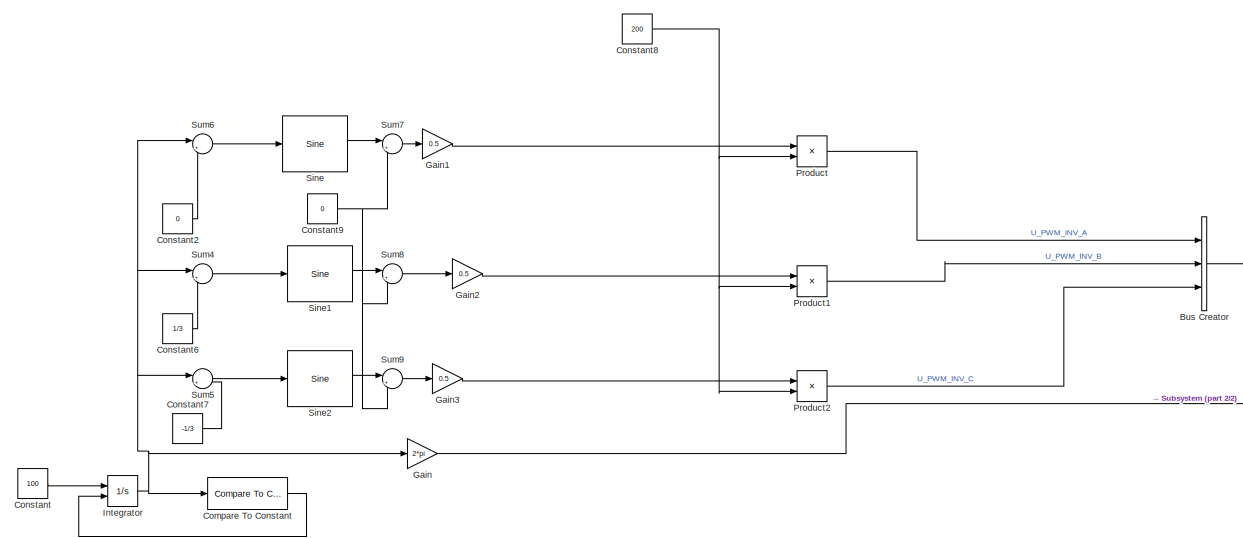
[diagram: root canvas - part 1/2, middle left region]
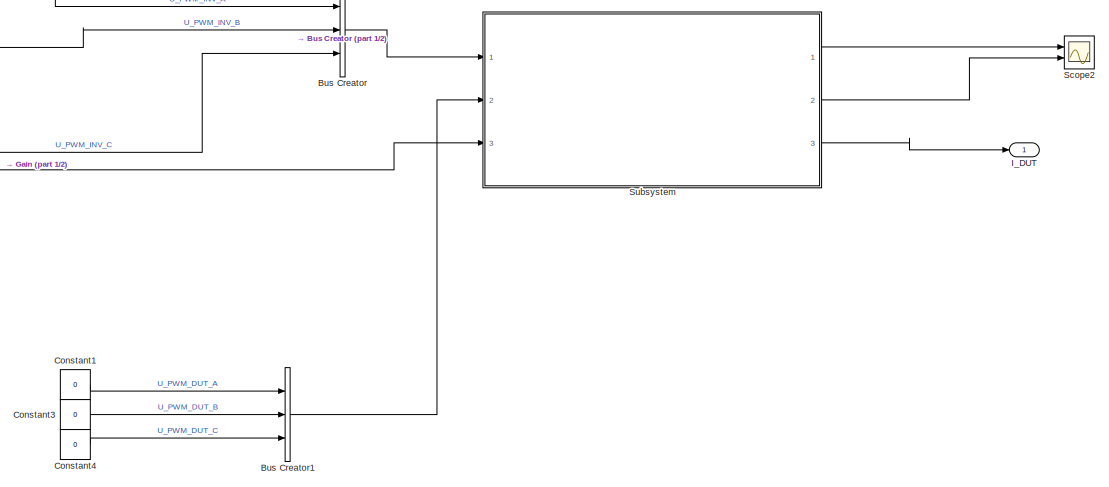
[diagram: root canvas - part 2/2, middle right region]
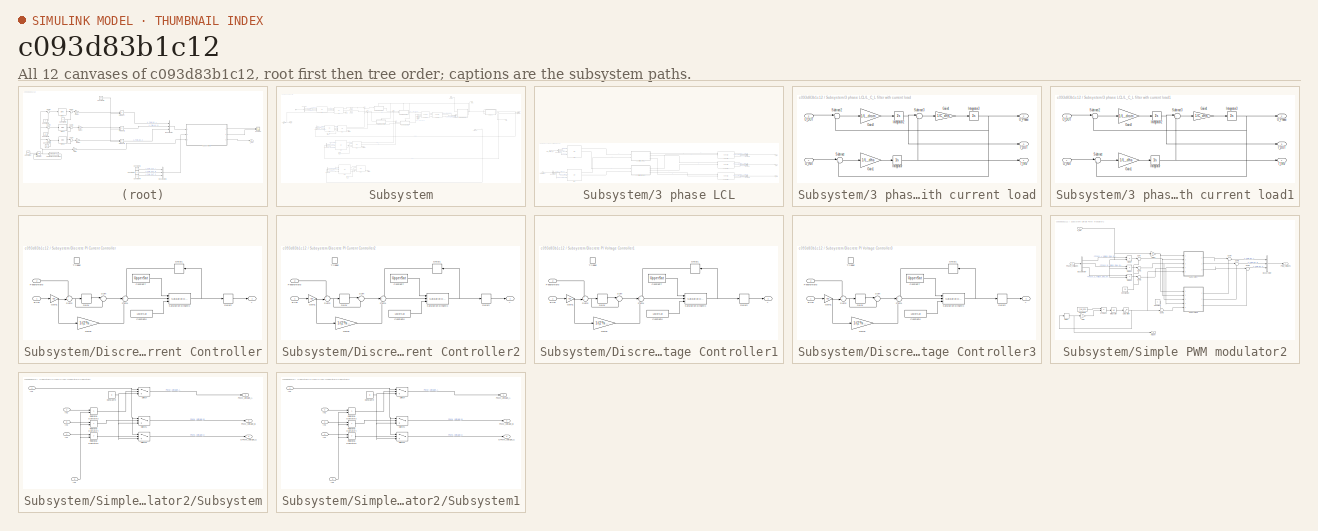
[diagram: thumbnail index - all 12 canvases of the model, root first then tree order]
MODEL slx_c093d83b1c12
KIND model
CONFIG AbsTol = auto
CONFIG EnableMultiTasking = off
CONFIG FixedStep = auto
CONFIG MaxStep = auto
CONFIG MinStep = auto
CONFIG RelTol = 1e-3
CONFIG SampleTimeConstraint = Unconstrained
CONFIG Solver = VariableStepAuto
CONFIG SolverName = VariableStepAuto
CONFIG StartTime = 0.0
CONFIG StopTime = 0.05
BLOCK [BusCreator] Bus Creator
  DisplayOption = bar
  InheritFromInputs = on
  Inputs = 3
  Ports = [3, 1]
BLOCK [BusCreator] Bus Creator1
  DisplayOption = bar
  InheritFromInputs = on
  Inputs = 3
  Ports = [3, 1]
BLOCK [Reference] Compare To Constant  REF=simulink/Logic and Bit
Operations/Compare
To Constant
  Ports = [1, 1]
  SourceBlock = simulink/Logic and Bit\nOperations/Compare\nTo Constant
  SourceProductBaseCode = SL
  SourceProductName = Simulink
  SourceType = Compare To Constant
BLOCK [Constant] Constant
  Value = 100
BLOCK [Constant] Constant1
  Value = 0
BLOCK [Constant] Constant2
  Value = 0
BLOCK [Constant] Constant3
  Value = 0
BLOCK [Constant] Constant4
  Value = 0
BLOCK [Constant] Constant6
  Value = 1/3
BLOCK [Constant] Constant7
  Value = -1/3
BLOCK [Constant] Constant8
  Value = 200
BLOCK [Constant] Constant9
  Value = 0
BLOCK [Gain] Gain
  Gain = 2*pi
  OutDataTypeStr = Inherit: Inherit via internal rule
  ParamDataTypeStr = Inherit: Inherit via internal rule
  SaturateOnIntegerOverflow = off
BLOCK [Gain] Gain1
  Gain = 0.5
  OutDataTypeStr = Inherit: Inherit via internal rule
  ParamDataTypeStr = Inherit: Inherit via internal rule
  SaturateOnIntegerOverflow = off
BLOCK [Gain] Gain2
  Gain = 0.5
  OutDataTypeStr = Inherit: Inherit via internal rule
  ParamDataTypeStr = Inherit: Inherit via internal rule
  SaturateOnIntegerOverflow = off
BLOCK [Gain] Gain3
  Gain = 0.5
  OutDataTypeStr = Inherit: Inherit via internal rule
  ParamDataTypeStr = Inherit: Inherit via internal rule
  SaturateOnIntegerOverflow = off
BLOCK [Outport] I_DUT
  IconDisplay = Port number
BLOCK [Integrator] Integrator
  ExternalReset = either
  Ports = [2, 1]
BLOCK [Product] Product
  InputSameDT = off
  OutDataTypeStr = Inherit: Inherit via internal rule
  Ports = [2, 1]
  RndMeth = Floor
  SaturateOnIntegerOverflow = off
BLOCK [Product] Product1
  InputSameDT = off
  OutDataTypeStr = Inherit: Inherit via internal rule
  Ports = [2, 1]
  RndMeth = Floor
  SaturateOnIntegerOverflow = off
BLOCK [Product] Product2
  InputSameDT = off
  OutDataTypeStr = Inherit: Inherit via internal rule
  Ports = [2, 1]
  RndMeth = Floor
  SaturateOnIntegerOverflow = off
BLOCK [Scope] Scope2
  Floating = off
  NumInputPorts = 2
  Ports = [2]
  ScopeSpecificationString = Simulink.scopes.TimeScopeBlockCfg('CurrentConfiguration', extmgr.ConfigurationSet(extmgr.Configuration('Core','General UI',true),extmgr.Configuration('Core','Source UI',true),extmgr.Configuration('Sources','WiredSimulink',true),extmgr.Configuration('Visuals','Time Domain',true,'SerializedDisplays',{struct('MinYLimReal','-130.78931','MaxYLimReal','139.79787','YLabelReal','','MinYLimMag',' 0.00000',...<+2735ch>
BLOCK [Reference] Sine  REF=simulink/Lookup
Tables/Sine
  Ports = [1, 1]
  SourceBlock = simulink/Lookup\nTables/Sine
  SourceProductBaseCode = SL
  SourceProductName = Simulink
  SourceType = Sine and Cosine
BLOCK [Reference] Sine1  REF=simulink/Lookup
Tables/Sine
  Ports = [1, 1]
  SourceBlock = simulink/Lookup\nTables/Sine
  SourceProductBaseCode = SL
  SourceProductName = Simulink
  SourceType = Sine and Cosine
BLOCK [Reference] Sine2  REF=simulink/Lookup
Tables/Sine
  Ports = [1, 1]
  SourceBlock = simulink/Lookup\nTables/Sine
  SourceProductBaseCode = SL
  SourceProductName = Simulink
  SourceType = Sine and Cosine
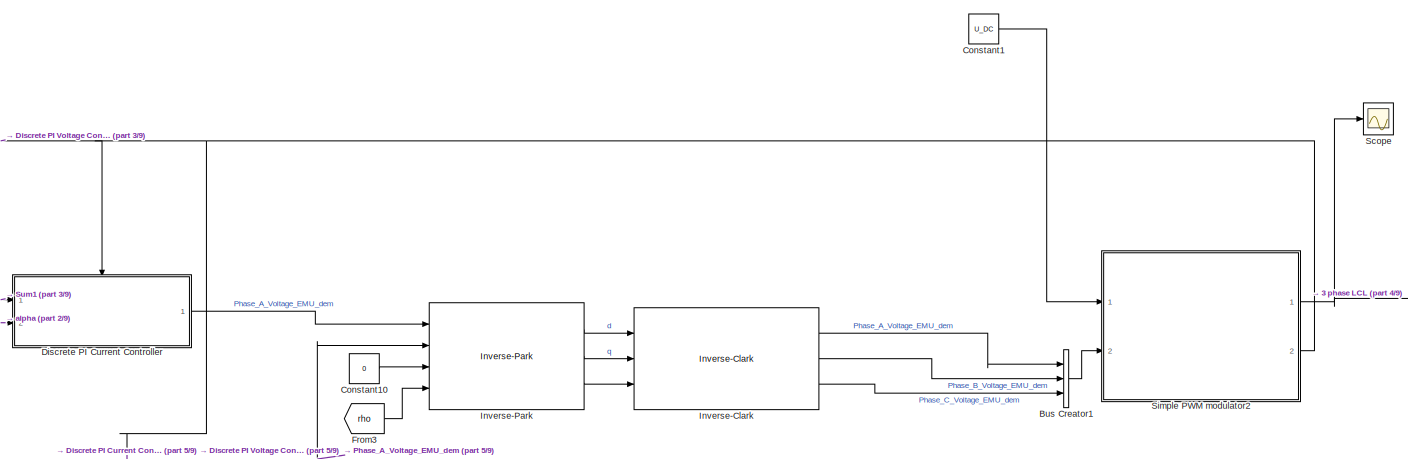
[diagram: Subsystem - part 1/9, top center region]
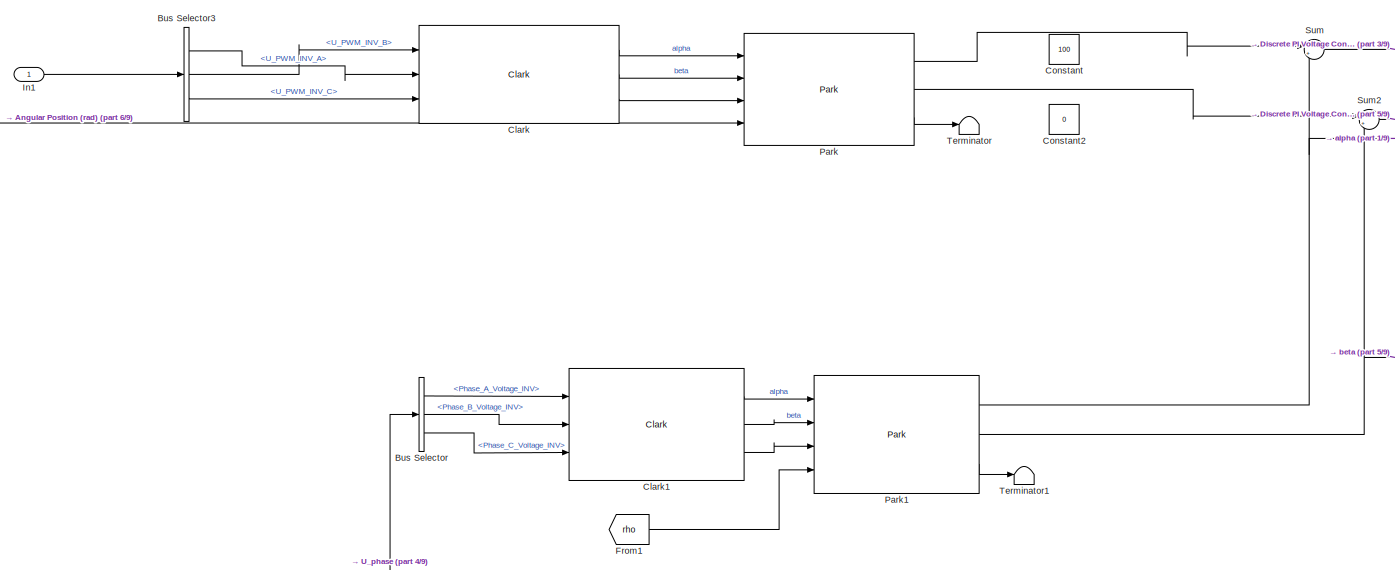
[diagram: Subsystem - part 2/9, top left region]
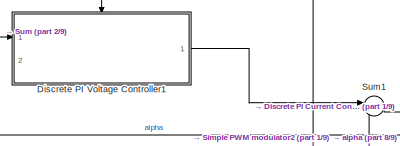
[diagram: Subsystem - part 3/9, top center region]
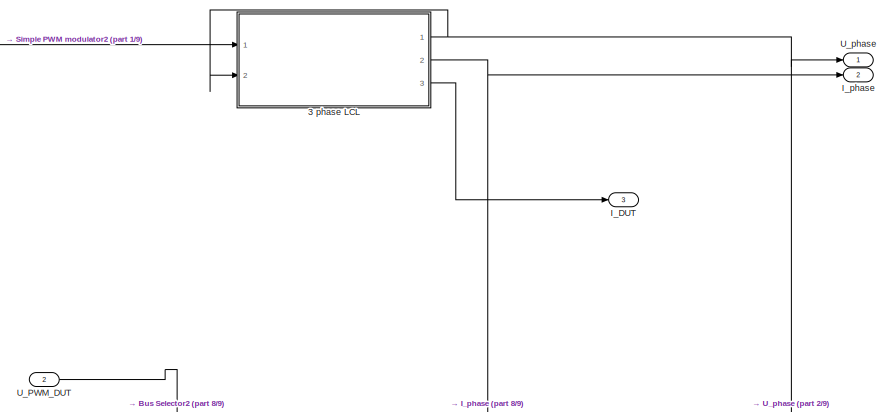
[diagram: Subsystem - part 4/9, top right region]
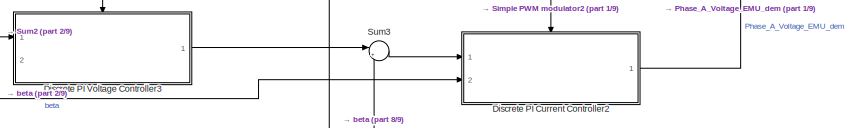
[diagram: Subsystem - part 5/9, top center region]
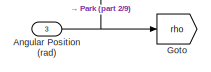
[diagram: Subsystem - part 6/9, top left region]
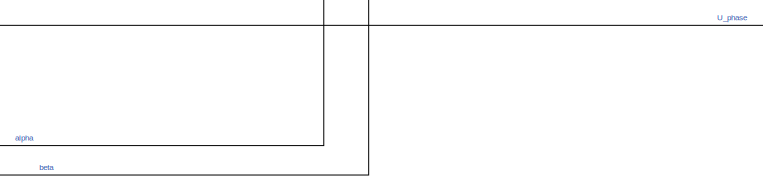
[diagram: Subsystem - part 7/9, central region]
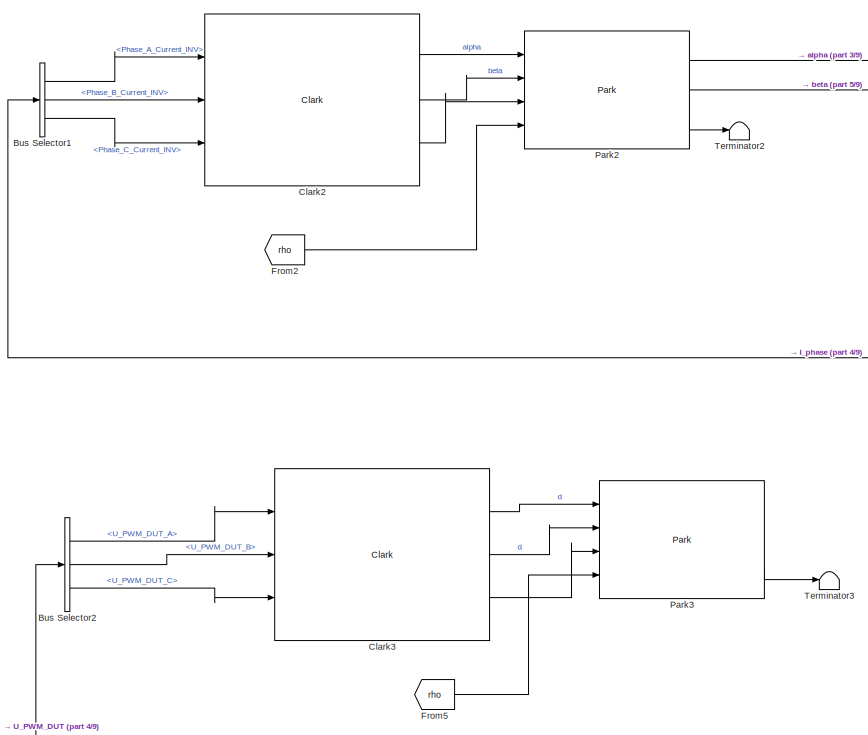
[diagram: Subsystem - part 8/9, bottom left region]
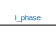
[diagram: Subsystem - part 9/9, bottom center region]
BLOCK [SubSystem] Subsystem
  Ports = [3, 3]
  RequestExecContextInheritance = off
BLOCK [SubSystem] Subsystem/3 phase LCL
  Ports = [2, 3]
  RequestExecContextInheritance = off
BLOCK [BusCreator] Subsystem/3 phase LCL/Bus Creator
  DisplayOption = bar
  InheritFromInputs = on
  Inputs = 3
  Ports = [3, 1]
BLOCK [BusCreator] Subsystem/3 phase LCL/Bus Creator1
  DisplayOption = bar
  InheritFromInputs = on
  Inputs = 3
  Ports = [3, 1]
BLOCK [BusCreator] Subsystem/3 phase LCL/Bus Creator2
  DisplayOption = bar
  InheritFromInputs = on
  Inputs = 3
  Ports = [3, 1]
BLOCK [BusSelector] Subsystem/3 phase LCL/Bus Selector
  OutputAsBus = off
  OutputSignals = U_PWM_INV_A,U_PWM_INV_B,U_PWM_INV_C
  Ports = [1, 3]
BLOCK [BusSelector] Subsystem/3 phase LCL/Bus Selector1
  OutputAsBus = off
  OutputSignals = Phase_A_Voltage_INV,Phase_B_Voltage_INV,Phase_C_Voltage_INV
  Ports = [1, 3]
BLOCK [Reference] Subsystem/3 phase LCL/Clark  REF=coordinate_transformations/Clark  (lib defined in slx_d357c885b4a9)
  Ports = [3, 3]
  SourceBlock = coordinate_transformations/Clark
  SourceType = SubSystem
BLOCK [Reference] Subsystem/3 phase LCL/Clark1  REF=coordinate_transformations/Clark  (lib defined in slx_d357c885b4a9)
  Ports = [3, 3]
  SourceBlock = coordinate_transformations/Clark
  SourceType = SubSystem
BLOCK [Outport] Subsystem/3 phase LCL/I_DUT
  IconDisplay = Port number
  Port = 3
BLOCK [Outport] Subsystem/3 phase LCL/I_INV
  IconDisplay = Port number
  Port = 2
BLOCK [Reference] Subsystem/3 phase LCL/Inverse-Clark  REF=coordinate_transformations/Inverse-Clark  (lib defined in slx_d357c885b4a9)
  Ports = [3, 3]
  SourceBlock = coordinate_transformations/Inverse-Clark
  SourceType = SubSystem
BLOCK [Reference] Subsystem/3 phase LCL/Inverse-Clark1  REF=coordinate_transformations/Inverse-Clark  (lib defined in slx_d357c885b4a9)
  Ports = [3, 3]
  SourceBlock = coordinate_transformations/Inverse-Clark
  SourceType = SubSystem
BLOCK [Reference] Subsystem/3 phase LCL/Inverse-Clark2  REF=coordinate_transformations/Inverse-Clark  (lib defined in slx_d357c885b4a9)
  Ports = [3, 3]
  SourceBlock = coordinate_transformations/Inverse-Clark
  SourceType = SubSystem
BLOCK [SubSystem] Subsystem/3 phase LCL/L_C_L filter with current load
  Ports = [2, 3]
  RequestExecContextInheritance = off
BLOCK [Gain] Subsystem/3 phase LCL/L_C_L filter with current load/Gain1
  Gain = 1/L_dhs
  OutDataTypeStr = Inherit: Inherit via internal rule
  ParamDataTypeStr = Inherit: Inherit via internal rule
  SaturateOnIntegerOverflow = off
BLOCK [Gain] Subsystem/3 phase LCL/L_C_L filter with current load/Gain3
  Gain = 1/L_drom
  OutDataTypeStr = Inherit: Inherit via internal rule
  ParamDataTypeStr = Inherit: Inherit via internal rule
  SaturateOnIntegerOverflow = off
BLOCK [Gain] Subsystem/3 phase LCL/L_C_L filter with current load/Gain4
  Gain = 1/C_dhs
  OutDataTypeStr = Inherit: Inherit via internal rule
  ParamDataTypeStr = Inherit: Inherit via internal rule
  SaturateOnIntegerOverflow = off
BLOCK [Outport] Subsystem/3 phase LCL/L_C_L filter with current load/I_DUT
  IconDisplay = Port number
  Port = 3
BLOCK [Outport] Subsystem/3 phase LCL/L_C_L filter with current load/I_INV
  IconDisplay = Port number
BLOCK [Integrator] Subsystem/3 phase LCL/L_C_L filter with current load/Integrator
  Ports = [1, 1]
BLOCK [Integrator] Subsystem/3 phase LCL/L_C_L filter with current load/Integrator2
  Ports = [1, 1]
BLOCK [Integrator] Subsystem/3 phase LCL/L_C_L filter with current load/Integrator3
  Ports = [1, 1]
BLOCK [Sum] Subsystem/3 phase LCL/L_C_L filter with current load/Subtract
  IconShape = round
  InputSameDT = off
  Inputs = |+-
  OutDataTypeStr = Inherit: Inherit via internal rule
  Ports = [2, 1]
  SaturateOnIntegerOverflow = off
BLOCK [Sum] Subsystem/3 phase LCL/L_C_L filter with current load/Subtract2
  IconShape = round
  InputSameDT = off
  Inputs = |+-
  OutDataTypeStr = Inherit: Inherit via internal rule
  Ports = [2, 1]
  SaturateOnIntegerOverflow = off
BLOCK [Sum] Subsystem/3 phase LCL/L_C_L filter with current load/Subtract3
  IconShape = round
  InputSameDT = off
  Inputs = |++
  OutDataTypeStr = Inherit: Inherit via internal rule
  Ports = [2, 1]
  SaturateOnIntegerOverflow = off
BLOCK [Inport] Subsystem/3 phase LCL/L_C_L filter with current load/U_DUT
  IconDisplay = Port number
  Port = 2
BLOCK [Inport] Subsystem/3 phase LCL/L_C_L filter with current load/U_INV
  IconDisplay = Port number
BLOCK [Outport] Subsystem/3 phase LCL/L_C_L filter with current load/U_Phase
  IconDisplay = Port number
  Port = 2
BLOCK [SubSystem] Subsystem/3 phase LCL/L_C_L filter with current load1
  Ports = [2, 3]
  RequestExecContextInheritance = off
BLOCK [Gain] Subsystem/3 phase LCL/L_C_L filter with current load1/Gain1
  Gain = 1/L_dhs
  OutDataTypeStr = Inherit: Inherit via internal rule
  ParamDataTypeStr = Inherit: Inherit via internal rule
  SaturateOnIntegerOverflow = off
BLOCK [Gain] Subsystem/3 phase LCL/L_C_L filter with current load1/Gain3
  Gain = 1/L_drom
  OutDataTypeStr = Inherit: Inherit via internal rule
  ParamDataTypeStr = Inherit: Inherit via internal rule
  SaturateOnIntegerOverflow = off
BLOCK [Gain] Subsystem/3 phase LCL/L_C_L filter with current load1/Gain4
  Gain = 1/C_dhs
  OutDataTypeStr = Inherit: Inherit via internal rule
  ParamDataTypeStr = Inherit: Inherit via internal rule
  SaturateOnIntegerOverflow = off
BLOCK [Outport] Subsystem/3 phase LCL/L_C_L filter with current load1/I_DUT
  IconDisplay = Port number
  Port = 3
BLOCK [Outport] Subsystem/3 phase LCL/L_C_L filter with current load1/I_INV
  IconDisplay = Port number
BLOCK [Integrator] Subsystem/3 phase LCL/L_C_L filter with current load1/Integrator
  Ports = [1, 1]
BLOCK [Integrator] Subsystem/3 phase LCL/L_C_L filter with current load1/Integrator2
  Ports = [1, 1]
BLOCK [Integrator] Subsystem/3 phase LCL/L_C_L filter with current load1/Integrator3
  Ports = [1, 1]
BLOCK [Sum] Subsystem/3 phase LCL/L_C_L filter with current load1/Subtract
  IconShape = round
  InputSameDT = off
  Inputs = |+-
  OutDataTypeStr = Inherit: Inherit via internal rule
  Ports = [2, 1]
  SaturateOnIntegerOverflow = off
BLOCK [Sum] Subsystem/3 phase LCL/L_C_L filter with current load1/Subtract2
  IconShape = round
  InputSameDT = off
  Inputs = |+-
  OutDataTypeStr = Inherit: Inherit via internal rule
  Ports = [2, 1]
  SaturateOnIntegerOverflow = off
BLOCK [Sum] Subsystem/3 phase LCL/L_C_L filter with current load1/Subtract3
  IconShape = round
  InputSameDT = off
  Inputs = |++
  OutDataTypeStr = Inherit: Inherit via internal rule
  Ports = [2, 1]
  SaturateOnIntegerOverflow = off
BLOCK [Inport] Subsystem/3 phase LCL/L_C_L filter with current load1/U_DUT
  IconDisplay = Port number
  Port = 2
BLOCK [Inport] Subsystem/3 phase LCL/L_C_L filter with current load1/U_INV
  IconDisplay = Port number
BLOCK [Outport] Subsystem/3 phase LCL/L_C_L filter with current load1/U_Phase
  IconDisplay = Port number
  Port = 2
BLOCK [Inport] Subsystem/3 phase LCL/PWM_Voltage_DUT
  IconDisplay = Port number
  Port = 2
BLOCK [Inport] Subsystem/3 phase LCL/PWM_Voltage_INV
  IconDisplay = Port number
BLOCK [Outport] Subsystem/3 phase LCL/U_INV
  IconDisplay = Port number
BLOCK [Inport] Subsystem/Angular Position (rad)
  IconDisplay = Port number
  Port = 3
BLOCK [BusCreator] Subsystem/Bus Creator1
  DisplayOption = bar
  InheritFromInputs = on
  Inputs = 3
  Ports = [3, 1]
BLOCK [BusSelector] Subsystem/Bus Selector
  OutputAsBus = off
  OutputSignals = Phase_A_Voltage_INV,Phase_B_Voltage_INV,Phase_C_Voltage_INV
  Ports = [1, 3]
BLOCK [BusSelector] Subsystem/Bus Selector1
  OutputAsBus = off
  OutputSignals = Phase_A_Current_INV,Phase_B_Current_INV,Phase_C_Current_INV
  Ports = [1, 3]
BLOCK [BusSelector] Subsystem/Bus Selector2
  OutputAsBus = off
  OutputSignals = U_PWM_DUT_A,U_PWM_DUT_B,U_PWM_DUT_C
  Ports = [1, 3]
BLOCK [BusSelector] Subsystem/Bus Selector3
  OutputAsBus = off
  OutputSignals = U_PWM_INV_A,U_PWM_INV_B,U_PWM_INV_C
  Ports = [1, 3]
BLOCK [Reference] Subsystem/Clark  REF=coordinate_transformations/Clark  (lib defined in slx_d357c885b4a9)
  Ports = [3, 3]
  SourceBlock = coordinate_transformations/Clark
  SourceType = SubSystem
BLOCK [Reference] Subsystem/Clark1  REF=coordinate_transformations/Clark  (lib defined in slx_d357c885b4a9)
  Ports = [3, 3]
  SourceBlock = coordinate_transformations/Clark
  SourceType = SubSystem
BLOCK [Reference] Subsystem/Clark2  REF=coordinate_transformations/Clark  (lib defined in slx_d357c885b4a9)
  Ports = [3, 3]
  SourceBlock = coordinate_transformations/Clark
  SourceType = SubSystem
BLOCK [Reference] Subsystem/Clark3  REF=coordinate_transformations/Clark  (lib defined in slx_d357c885b4a9)
  Ports = [3, 3]
  SourceBlock = coordinate_transformations/Clark
  SourceType = SubSystem
BLOCK [Constant] Subsystem/Constant
  Value = 100
BLOCK [Constant] Subsystem/Constant1
  Value = U_DC
BLOCK [Constant] Subsystem/Constant10
  Value = 0
BLOCK [Constant] Subsystem/Constant2
  Value = 0
BLOCK [SubSystem] Subsystem/Discrete PI Current Controller
  AncestorBlock = controllers/Discrete PI Controller
  Ports = [2, 1, 0, 1]
  RequestExecContextInheritance = off
BLOCK [Constant] Subsystem/Discrete PI Current Controller/Constant6
  Value = LowerSat
BLOCK [Constant] Subsystem/Discrete PI Current Controller/Constant7
  Value = UpperSat
BLOCK [Delay] Subsystem/Discrete PI Current Controller/Delay
  DelayLength = 1
  InputPortMap = u0
  Ports = [1, 1]
BLOCK [Delay] Subsystem/Discrete PI Current Controller/Delay1
  DelayLength = 1
  InputPortMap = u0
  Ports = [1, 1]
BLOCK [Delay] Subsystem/Discrete PI Current Controller/Delay2
  DelayLength = 1
  InputPortMap = u0
  Ports = [1, 1]
BLOCK [Inport] Subsystem/Discrete PI Current Controller/Error
  IconDisplay = Port number
BLOCK [Inport] Subsystem/Discrete PI Current Controller/Feedforward
  IconDisplay = Port number
  Port = 2
BLOCK [Gain] Subsystem/Discrete PI Current Controller/Gain1
  Gain = Apd
  OutDataTypeStr = Inherit: Inherit via internal rule
  ParamDataTypeStr = Inherit: Inherit via internal rule
  SaturateOnIntegerOverflow = off
BLOCK [Gain] Subsystem/Discrete PI Current Controller/Gain2
  Gain = 1/(2*fs*Tid)
  OutDataTypeStr = Inherit: Inherit via internal rule
  ParamDataTypeStr = Inherit: Inherit via internal rule
  SaturateOnIntegerOverflow = off
BLOCK [Reference] Subsystem/Discrete PI Current Controller/Saturation Dynamic  REF=simulink/Discontinuities/Saturation
Dynamic
  Ports = [3, 1]
  SourceBlock = simulink/Discontinuities/Saturation\nDynamic
  SourceProductBaseCode = SL
  SourceProductName = Simulink
  SourceType = Saturation Dynamic
BLOCK [Sum] Subsystem/Discrete PI Current Controller/Sum
  IconShape = round
  InputSameDT = off
  Inputs = |-+
  OutDataTypeStr = Inherit: Inherit via internal rule
  Ports = [2, 1]
  SaturateOnIntegerOverflow = off
BLOCK [Sum] Subsystem/Discrete PI Current Controller/Sum1
  IconShape = round
  InputSameDT = off
  Inputs = +++
  OutDataTypeStr = Inherit: Inherit via internal rule
  Ports = [3, 1]
  SaturateOnIntegerOverflow = off
BLOCK [Sum] Subsystem/Discrete PI Current Controller/Sum2
  IconShape = round
  InputSameDT = off
  Inputs = ++|
  OutDataTypeStr = Inherit: Inherit via internal rule
  Ports = [2, 1]
  SaturateOnIntegerOverflow = off
BLOCK [TriggerPort] Subsystem/Discrete PI Current Controller/Trigger
  PortDimensions = 1
  Ports = []
  StatesWhenEnabling = held
  TriggerType = either
  VariantControl = Variant
BLOCK [Outport] Subsystem/Discrete PI Current Controller/y
  IconDisplay = Port number
BLOCK [SubSystem] Subsystem/Discrete PI Current Controller2
  AncestorBlock = controllers/Discrete PI Controller
  Ports = [2, 1, 0, 1]
  RequestExecContextInheritance = off
BLOCK [Constant] Subsystem/Discrete PI Current Controller2/Constant6
  Value = LowerSat
BLOCK [Constant] Subsystem/Discrete PI Current Controller2/Constant7
  Value = UpperSat
BLOCK [Delay] Subsystem/Discrete PI Current Controller2/Delay
  DelayLength = 1
  InputPortMap = u0
  Ports = [1, 1]
BLOCK [Delay] Subsystem/Discrete PI Current Controller2/Delay1
  DelayLength = 1
  InputPortMap = u0
  Ports = [1, 1]
BLOCK [Delay] Subsystem/Discrete PI Current Controller2/Delay2
  DelayLength = 1
  InputPortMap = u0
  Ports = [1, 1]
BLOCK [Inport] Subsystem/Discrete PI Current Controller2/Error
  IconDisplay = Port number
BLOCK [Inport] Subsystem/Discrete PI Current Controller2/Feedforward
  IconDisplay = Port number
  Port = 2
BLOCK [Gain] Subsystem/Discrete PI Current Controller2/Gain1
  Gain = Apd
  OutDataTypeStr = Inherit: Inherit via internal rule
  ParamDataTypeStr = Inherit: Inherit via internal rule
  SaturateOnIntegerOverflow = off
BLOCK [Gain] Subsystem/Discrete PI Current Controller2/Gain2
  Gain = 1/(2*fs*Tid)
  OutDataTypeStr = Inherit: Inherit via internal rule
  ParamDataTypeStr = Inherit: Inherit via internal rule
  SaturateOnIntegerOverflow = off
BLOCK [Reference] Subsystem/Discrete PI Current Controller2/Saturation Dynamic  REF=simulink/Discontinuities/Saturation
Dynamic
  Ports = [3, 1]
  SourceBlock = simulink/Discontinuities/Saturation\nDynamic
  SourceProductBaseCode = SL
  SourceProductName = Simulink
  SourceType = Saturation Dynamic
BLOCK [Sum] Subsystem/Discrete PI Current Controller2/Sum
  IconShape = round
  InputSameDT = off
  Inputs = |-+
  OutDataTypeStr = Inherit: Inherit via internal rule
  Ports = [2, 1]
  SaturateOnIntegerOverflow = off
BLOCK [Sum] Subsystem/Discrete PI Current Controller2/Sum1
  IconShape = round
  InputSameDT = off
  Inputs = +++
  OutDataTypeStr = Inherit: Inherit via internal rule
  Ports = [3, 1]
  SaturateOnIntegerOverflow = off
BLOCK [Sum] Subsystem/Discrete PI Current Controller2/Sum2
  IconShape = round
  InputSameDT = off
  Inputs = ++|
  OutDataTypeStr = Inherit: Inherit via internal rule
  Ports = [2, 1]
  SaturateOnIntegerOverflow = off
BLOCK [TriggerPort] Subsystem/Discrete PI Current Controller2/Trigger
  PortDimensions = 1
  Ports = []
  StatesWhenEnabling = held
  TriggerType = either
  VariantControl = Variant
BLOCK [Outport] Subsystem/Discrete PI Current Controller2/y
  IconDisplay = Port number
BLOCK [SubSystem] Subsystem/Discrete PI Voltage Controller1
  AncestorBlock = controllers/Discrete PI Controller
  Ports = [2, 1, 0, 1]
  RequestExecContextInheritance = off
BLOCK [Constant] Subsystem/Discrete PI Voltage Controller1/Constant6
  Value = LowerSat
BLOCK [Constant] Subsystem/Discrete PI Voltage Controller1/Constant7
  Value = UpperSat
BLOCK [Delay] Subsystem/Discrete PI Voltage Controller1/Delay
  DelayLength = 1
  InputPortMap = u0
  Ports = [1, 1]
BLOCK [Delay] Subsystem/Discrete PI Voltage Controller1/Delay1
  DelayLength = 1
  InputPortMap = u0
  Ports = [1, 1]
BLOCK [Delay] Subsystem/Discrete PI Voltage Controller1/Delay2
  DelayLength = 1
  InputPortMap = u0
  Ports = [1, 1]
BLOCK [Inport] Subsystem/Discrete PI Voltage Controller1/Error
  IconDisplay = Port number
BLOCK [Inport] Subsystem/Discrete PI Voltage Controller1/Feedforward
  IconDisplay = Port number
  Port = 2
BLOCK [Gain] Subsystem/Discrete PI Voltage Controller1/Gain1
  Gain = Apd
  OutDataTypeStr = Inherit: Inherit via internal rule
  ParamDataTypeStr = Inherit: Inherit via internal rule
  SaturateOnIntegerOverflow = off
BLOCK [Gain] Subsystem/Discrete PI Voltage Controller1/Gain2
  Gain = 1/(2*fs*Tid)
  OutDataTypeStr = Inherit: Inherit via internal rule
  ParamDataTypeStr = Inherit: Inherit via internal rule
  SaturateOnIntegerOverflow = off
BLOCK [Reference] Subsystem/Discrete PI Voltage Controller1/Saturation Dynamic  REF=simulink/Discontinuities/Saturation
Dynamic
  Ports = [3, 1]
  SourceBlock = simulink/Discontinuities/Saturation\nDynamic
  SourceProductBaseCode = SL
  SourceProductName = Simulink
  SourceType = Saturation Dynamic
BLOCK [Sum] Subsystem/Discrete PI Voltage Controller1/Sum
  IconShape = round
  InputSameDT = off
  Inputs = |-+
  OutDataTypeStr = Inherit: Inherit via internal rule
  Ports = [2, 1]
  SaturateOnIntegerOverflow = off
BLOCK [Sum] Subsystem/Discrete PI Voltage Controller1/Sum1
  IconShape = round
  InputSameDT = off
  Inputs = +++
  OutDataTypeStr = Inherit: Inherit via internal rule
  Ports = [3, 1]
  SaturateOnIntegerOverflow = off
BLOCK [Sum] Subsystem/Discrete PI Voltage Controller1/Sum2
  IconShape = round
  InputSameDT = off
  Inputs = ++|
  OutDataTypeStr = Inherit: Inherit via internal rule
  Ports = [2, 1]
  SaturateOnIntegerOverflow = off
BLOCK [TriggerPort] Subsystem/Discrete PI Voltage Controller1/Trigger
  PortDimensions = 1
  Ports = []
  StatesWhenEnabling = held
  TriggerType = either
  VariantControl = Variant
BLOCK [Outport] Subsystem/Discrete PI Voltage Controller1/y
  IconDisplay = Port number
BLOCK [SubSystem] Subsystem/Discrete PI Voltage Controller3
  AncestorBlock = controllers/Discrete PI Controller
  Ports = [2, 1, 0, 1]
  RequestExecContextInheritance = off
BLOCK [Constant] Subsystem/Discrete PI Voltage Controller3/Constant6
  Value = LowerSat
BLOCK [Constant] Subsystem/Discrete PI Voltage Controller3/Constant7
  Value = UpperSat
BLOCK [Delay] Subsystem/Discrete PI Voltage Controller3/Delay
  DelayLength = 1
  InputPortMap = u0
  Ports = [1, 1]
BLOCK [Delay] Subsystem/Discrete PI Voltage Controller3/Delay1
  DelayLength = 1
  InputPortMap = u0
  Ports = [1, 1]
BLOCK [Delay] Subsystem/Discrete PI Voltage Controller3/Delay2
  DelayLength = 1
  InputPortMap = u0
  Ports = [1, 1]
BLOCK [Inport] Subsystem/Discrete PI Voltage Controller3/Error
  IconDisplay = Port number
BLOCK [Inport] Subsystem/Discrete PI Voltage Controller3/Feedforward
  IconDisplay = Port number
  Port = 2
BLOCK [Gain] Subsystem/Discrete PI Voltage Controller3/Gain1
  Gain = Apd
  OutDataTypeStr = Inherit: Inherit via internal rule
  ParamDataTypeStr = Inherit: Inherit via internal rule
  SaturateOnIntegerOverflow = off
BLOCK [Gain] Subsystem/Discrete PI Voltage Controller3/Gain2
  Gain = 1/(2*fs*Tid)
  OutDataTypeStr = Inherit: Inherit via internal rule
  ParamDataTypeStr = Inherit: Inherit via internal rule
  SaturateOnIntegerOverflow = off
BLOCK [Reference] Subsystem/Discrete PI Voltage Controller3/Saturation Dynamic  REF=simulink/Discontinuities/Saturation
Dynamic
  Ports = [3, 1]
  SourceBlock = simulink/Discontinuities/Saturation\nDynamic
  SourceProductBaseCode = SL
  SourceProductName = Simulink
  SourceType = Saturation Dynamic
BLOCK [Sum] Subsystem/Discrete PI Voltage Controller3/Sum
  IconShape = round
  InputSameDT = off
  Inputs = |-+
  OutDataTypeStr = Inherit: Inherit via internal rule
  Ports = [2, 1]
  SaturateOnIntegerOverflow = off
BLOCK [Sum] Subsystem/Discrete PI Voltage Controller3/Sum1
  IconShape = round
  InputSameDT = off
  Inputs = +++
  OutDataTypeStr = Inherit: Inherit via internal rule
  Ports = [3, 1]
  SaturateOnIntegerOverflow = off
BLOCK [Sum] Subsystem/Discrete PI Voltage Controller3/Sum2
  IconShape = round
  InputSameDT = off
  Inputs = ++|
  OutDataTypeStr = Inherit: Inherit via internal rule
  Ports = [2, 1]
  SaturateOnIntegerOverflow = off
BLOCK [TriggerPort] Subsystem/Discrete PI Voltage Controller3/Trigger
  PortDimensions = 1
  Ports = []
  StatesWhenEnabling = held
  TriggerType = either
  VariantControl = Variant
BLOCK [Outport] Subsystem/Discrete PI Voltage Controller3/y
  IconDisplay = Port number
BLOCK [From] Subsystem/From1
  GotoTag = rho
BLOCK [From] Subsystem/From2
  GotoTag = rho
BLOCK [From] Subsystem/From3
  GotoTag = rho
BLOCK [From] Subsystem/From5
  GotoTag = rho
BLOCK [Goto] Subsystem/Goto
  GotoTag = rho
BLOCK [Outport] Subsystem/I_DUT
  IconDisplay = Port number
  Port = 3
BLOCK [Outport] Subsystem/I_phase
  IconDisplay = Port number
  Port = 2
BLOCK [Inport] Subsystem/In1
  IconDisplay = Port number
BLOCK [Reference] Subsystem/Inverse-Clark  REF=coordinate_transformations/Inverse-Clark  (lib defined in slx_d357c885b4a9)
  Ports = [3, 3]
  SourceBlock = coordinate_transformations/Inverse-Clark
  SourceType = SubSystem
BLOCK [Reference] Subsystem/Inverse-Park  REF=coordinate_transformations/Inverse-Park  (lib defined in slx_d357c885b4a9)
  Ports = [4, 3]
  SourceBlock = coordinate_transformations/Inverse-Park
  SourceType = SubSystem
BLOCK [Reference] Subsystem/Park  REF=coordinate_transformations/Park  (lib defined in slx_d357c885b4a9)
  Ports = [4, 3]
  SourceBlock = coordinate_transformations/Park
  SourceType = SubSystem
BLOCK [Reference] Subsystem/Park1  REF=coordinate_transformations/Park  (lib defined in slx_d357c885b4a9)
  Ports = [4, 3]
  SourceBlock = coordinate_transformations/Park
  SourceType = SubSystem
BLOCK [Reference] Subsystem/Park2  REF=coordinate_transformations/Park  (lib defined in slx_d357c885b4a9)
  Ports = [4, 3]
  SourceBlock = coordinate_transformations/Park
  SourceType = SubSystem
BLOCK [Reference] Subsystem/Park3  REF=coordinate_transformations/Park  (lib defined in slx_d357c885b4a9)
  Ports = [4, 3]
  SourceBlock = coordinate_transformations/Park
  SourceType = SubSystem
BLOCK [Scope] Subsystem/Scope
  Floating = off
  NumInputPorts = 1
  Ports = [1]
  ScopeSpecificationString = Simulink.scopes.TimeScopeBlockCfg('CurrentConfiguration', extmgr.ConfigurationSet(extmgr.Configuration('Core','General UI',true),extmgr.Configuration('Core','Source UI',true),extmgr.Configuration('Sources','WiredSimulink',true,'DataLoggingVariableName','ScopeData1'),extmgr.Configuration('Visuals','Time Domain',true,'SerializedDisplays',{struct('MinYLimReal','-87.5','MaxYLimReal','787.5','YLabelRea...<+1536ch>
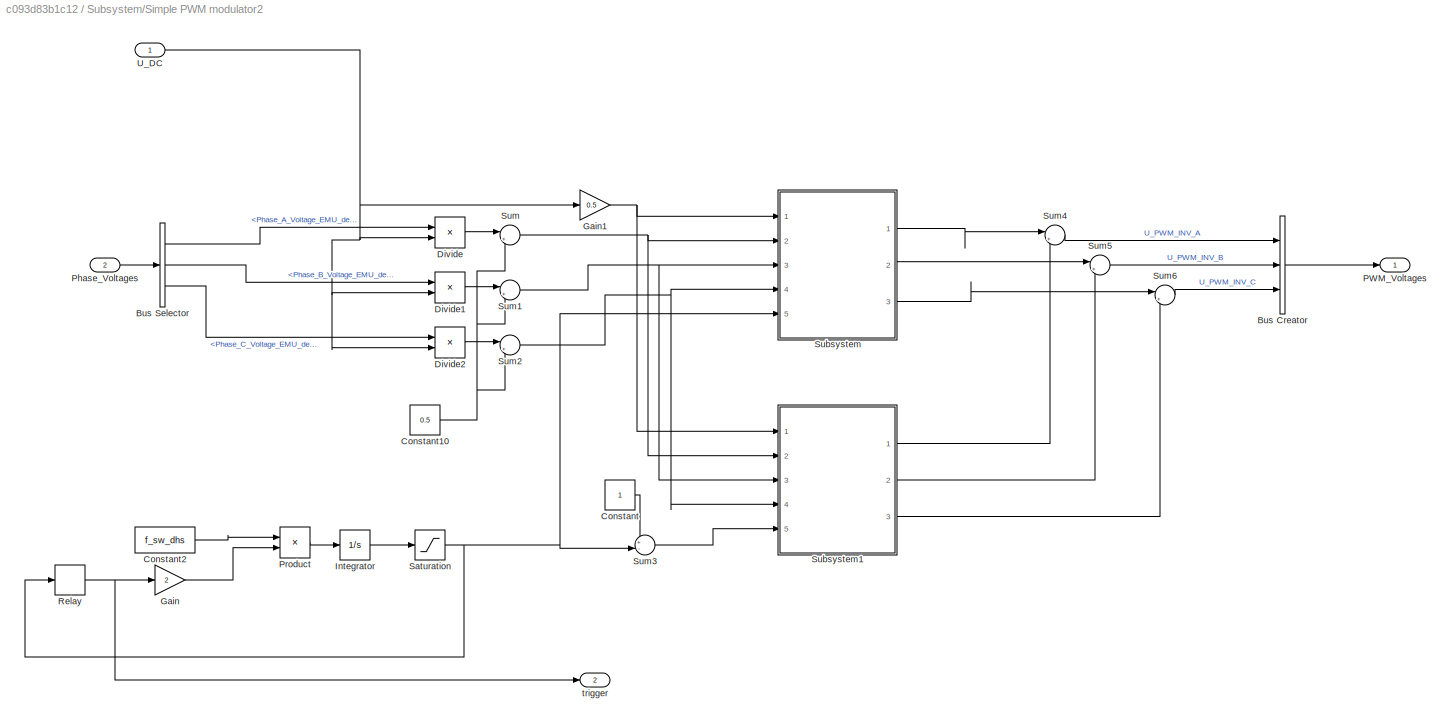
BLOCK [SubSystem] Subsystem/Simple PWM modulator2
  AncestorBlock = controllers/Simple PWM modulator
  Ports = [2, 2]
  RequestExecContextInheritance = off
BLOCK [BusCreator] Subsystem/Simple PWM modulator2/Bus Creator
  DisplayOption = bar
  InheritFromInputs = on
  Inputs = 3
  Ports = [3, 1]
BLOCK [BusSelector] Subsystem/Simple PWM modulator2/Bus Selector
  OutputAsBus = off
  OutputSignals = Phase_A_Voltage_EMU_dem,Phase_B_Voltage_EMU_dem,Phase_C_Voltage_EMU_dem
  Ports = [1, 3]
BLOCK [Constant] Subsystem/Simple PWM modulator2/Constant
BLOCK [Constant] Subsystem/Simple PWM modulator2/Constant10
  Value = 0.5
BLOCK [Constant] Subsystem/Simple PWM modulator2/Constant2
  Value = f_sw_dhs
BLOCK [Product] Subsystem/Simple PWM modulator2/Divide
  InputSameDT = off
  Inputs = */
  OutDataTypeStr = Inherit: Inherit via internal rule
  Ports = [2, 1]
  RndMeth = Floor
  SaturateOnIntegerOverflow = off
BLOCK [Product] Subsystem/Simple PWM modulator2/Divide1
  InputSameDT = off
  Inputs = */
  OutDataTypeStr = Inherit: Inherit via internal rule
  Ports = [2, 1]
  RndMeth = Floor
  SaturateOnIntegerOverflow = off
BLOCK [Product] Subsystem/Simple PWM modulator2/Divide2
  InputSameDT = off
  Inputs = */
  OutDataTypeStr = Inherit: Inherit via internal rule
  Ports = [2, 1]
  RndMeth = Floor
  SaturateOnIntegerOverflow = off
BLOCK [Gain] Subsystem/Simple PWM modulator2/Gain
  Gain = 2
  OutDataTypeStr = Inherit: Inherit via internal rule
  ParamDataTypeStr = Inherit: Inherit via internal rule
  SaturateOnIntegerOverflow = off
BLOCK [Gain] Subsystem/Simple PWM modulator2/Gain1
  Gain = 0.5
  OutDataTypeStr = Inherit: Inherit via internal rule
  ParamDataTypeStr = Inherit: Inherit via internal rule
  SaturateOnIntegerOverflow = off
BLOCK [Integrator] Subsystem/Simple PWM modulator2/Integrator
  Ports = [1, 1]
BLOCK [Outport] Subsystem/Simple PWM modulator2/PWM_Voltages
  IconDisplay = Port number
BLOCK [Inport] Subsystem/Simple PWM modulator2/Phase_Voltages
  IconDisplay = Port number
  Port = 2
BLOCK [Product] Subsystem/Simple PWM modulator2/Product
  InputSameDT = off
  OutDataTypeStr = Inherit: Inherit via internal rule
  Ports = [2, 1]
  RndMeth = Floor
  SaturateOnIntegerOverflow = off
BLOCK [Relay] Subsystem/Simple PWM modulator2/Relay
  OffOutputValue = 1
  OffSwitchValue = 0
  OnOutputValue = -1
  OnSwitchValue = 1
BLOCK [Saturate] Subsystem/Simple PWM modulator2/Saturation
  InputPortMap = u0
  LowerLimit = 0
  Ports = [1, 1]
  UpperLimit = 1
BLOCK [SubSystem] Subsystem/Simple PWM modulator2/Subsystem
  Ports = [5, 3]
  RequestExecContextInheritance = off
BLOCK [Constant] Subsystem/Simple PWM modulator2/Subsystem/Constant9
  Value = 0
BLOCK [Inport] Subsystem/Simple PWM modulator2/Subsystem/In1
  IconDisplay = Port number
BLOCK [Inport] Subsystem/Simple PWM modulator2/Subsystem/In2
  IconDisplay = Port number
  Port = 2
BLOCK [Inport] Subsystem/Simple PWM modulator2/Subsystem/In3
  IconDisplay = Port number
  Port = 3
BLOCK [Inport] Subsystem/Simple PWM modulator2/Subsystem/In4
  IconDisplay = Port number
  Port = 4
BLOCK [Inport] Subsystem/Simple PWM modulator2/Subsystem/In5
  IconDisplay = Port number
  Port = 5
BLOCK [Outport] Subsystem/Simple PWM modulator2/Subsystem/OPWM_Voltage_C
  IconDisplay = Port number
  Port = 3
BLOCK [Outport] Subsystem/Simple PWM modulator2/Subsystem/PWM_Voltage_A
  IconDisplay = Port number
BLOCK [Outport] Subsystem/Simple PWM modulator2/Subsystem/PWM_Voltage_B
  IconDisplay = Port number
  Port = 2
BLOCK [RelationalOperator] Subsystem/Simple PWM modulator2/Subsystem/Relational Operator3
  InputSameDT = off
  Operator = >
  OutDataTypeStr = boolean
  Ports = [2, 1]
  RndMeth = Simplest
BLOCK [RelationalOperator] Subsystem/Simple PWM modulator2/Subsystem/Relational Operator4
  InputSameDT = off
  Operator = >
  OutDataTypeStr = boolean
  Ports = [2, 1]
  RndMeth = Simplest
BLOCK [RelationalOperator] Subsystem/Simple PWM modulator2/Subsystem/Relational Operator5
  InputSameDT = off
  Operator = >
  OutDataTypeStr = boolean
  Ports = [2, 1]
  RndMeth = Simplest
BLOCK [Switch] Subsystem/Simple PWM modulator2/Subsystem/Switch
  InputSameDT = off
  SaturateOnIntegerOverflow = off
  Threshold = 1
BLOCK [Switch] Subsystem/Simple PWM modulator2/Subsystem/Switch1
  InputSameDT = off
  SaturateOnIntegerOverflow = off
  Threshold = 1
BLOCK [Switch] Subsystem/Simple PWM modulator2/Subsystem/Switch2
  InputSameDT = off
  SaturateOnIntegerOverflow = off
  Threshold = 1
BLOCK [SubSystem] Subsystem/Simple PWM modulator2/Subsystem1
  Ports = [5, 3]
  RequestExecContextInheritance = off
BLOCK [Constant] Subsystem/Simple PWM modulator2/Subsystem1/Constant9
  Value = 0
BLOCK [Inport] Subsystem/Simple PWM modulator2/Subsystem1/In1
  IconDisplay = Port number
BLOCK [Inport] Subsystem/Simple PWM modulator2/Subsystem1/In2
  IconDisplay = Port number
  Port = 2
BLOCK [Inport] Subsystem/Simple PWM modulator2/Subsystem1/In3
  IconDisplay = Port number
  Port = 3
BLOCK [Inport] Subsystem/Simple PWM modulator2/Subsystem1/In4
  IconDisplay = Port number
  Port = 4
BLOCK [Inport] Subsystem/Simple PWM modulator2/Subsystem1/In5
  IconDisplay = Port number
  Port = 5
BLOCK [Outport] Subsystem/Simple PWM modulator2/Subsystem1/OPWM_Voltage_C
  IconDisplay = Port number
  Port = 3
BLOCK [Outport] Subsystem/Simple PWM modulator2/Subsystem1/PWM_Voltage_A
  IconDisplay = Port number
BLOCK [Outport] Subsystem/Simple PWM modulator2/Subsystem1/PWM_Voltage_B
  IconDisplay = Port number
  Port = 2
BLOCK [RelationalOperator] Subsystem/Simple PWM modulator2/Subsystem1/Relational Operator3
  InputSameDT = off
  Operator = >
  OutDataTypeStr = boolean
  Ports = [2, 1]
  RndMeth = Simplest
BLOCK [RelationalOperator] Subsystem/Simple PWM modulator2/Subsystem1/Relational Operator4
  InputSameDT = off
  Operator = >
  OutDataTypeStr = boolean
  Ports = [2, 1]
  RndMeth = Simplest
BLOCK [RelationalOperator] Subsystem/Simple PWM modulator2/Subsystem1/Relational Operator5
  InputSameDT = off
  Operator = >
  OutDataTypeStr = boolean
  Ports = [2, 1]
  RndMeth = Simplest
BLOCK [Switch] Subsystem/Simple PWM modulator2/Subsystem1/Switch
  InputSameDT = off
  SaturateOnIntegerOverflow = off
  Threshold = 1
BLOCK [Switch] Subsystem/Simple PWM modulator2/Subsystem1/Switch1
  InputSameDT = off
  SaturateOnIntegerOverflow = off
  Threshold = 1
BLOCK [Switch] Subsystem/Simple PWM modulator2/Subsystem1/Switch2
  InputSameDT = off
  SaturateOnIntegerOverflow = off
  Threshold = 1
BLOCK [Sum] Subsystem/Simple PWM modulator2/Sum
  IconShape = round
  InputSameDT = off
  Inputs = |++
  OutDataTypeStr = Inherit: Inherit via internal rule
  Ports = [2, 1]
  SaturateOnIntegerOverflow = off
BLOCK [Sum] Subsystem/Simple PWM modulator2/Sum1
  IconShape = round
  InputSameDT = off
  Inputs = |++
  OutDataTypeStr = Inherit: Inherit via internal rule
  Ports = [2, 1]
  SaturateOnIntegerOverflow = off
BLOCK [Sum] Subsystem/Simple PWM modulator2/Sum2
  IconShape = round
  InputSameDT = off
  Inputs = |++
  OutDataTypeStr = Inherit: Inherit via internal rule
  Ports = [2, 1]
  SaturateOnIntegerOverflow = off
BLOCK [Sum] Subsystem/Simple PWM modulator2/Sum3
  IconShape = round
  InputSameDT = off
  Inputs = +-|
  OutDataTypeStr = Inherit: Inherit via internal rule
  Ports = [2, 1]
  SaturateOnIntegerOverflow = off
BLOCK [Sum] Subsystem/Simple PWM modulator2/Sum4
  IconShape = round
  InputSameDT = off
  Inputs = |++
  OutDataTypeStr = Inherit: Inherit via internal rule
  Ports = [2, 1]
  SaturateOnIntegerOverflow = off
BLOCK [Sum] Subsystem/Simple PWM modulator2/Sum5
  IconShape = round
  InputSameDT = off
  Inputs = |++
  OutDataTypeStr = Inherit: Inherit via internal rule
  Ports = [2, 1]
  SaturateOnIntegerOverflow = off
BLOCK [Sum] Subsystem/Simple PWM modulator2/Sum6
  IconShape = round
  InputSameDT = off
  Inputs = |++
  OutDataTypeStr = Inherit: Inherit via internal rule
  Ports = [2, 1]
  SaturateOnIntegerOverflow = off
BLOCK [Inport] Subsystem/Simple PWM modulator2/U_DC
  IconDisplay = Port number
BLOCK [Outport] Subsystem/Simple PWM modulator2/trigger
  IconDisplay = Port number
  Port = 2
BLOCK [Sum] Subsystem/Sum
  IconShape = round
  InputSameDT = off
  Inputs = |+-
  OutDataTypeStr = Inherit: Inherit via internal rule
  Ports = [2, 1]
  SaturateOnIntegerOverflow = off
BLOCK [Sum] Subsystem/Sum1
  IconShape = round
  InputSameDT = off
  Inputs = |+-
  OutDataTypeStr = Inherit: Inherit via internal rule
  Ports = [2, 1]
  SaturateOnIntegerOverflow = off
BLOCK [Sum] Subsystem/Sum2
  IconShape = round
  InputSameDT = off
  Inputs = |+-
  OutDataTypeStr = Inherit: Inherit via internal rule
  Ports = [2, 1]
  SaturateOnIntegerOverflow = off
BLOCK [Sum] Subsystem/Sum3
  IconShape = round
  InputSameDT = off
  Inputs = |+-
  OutDataTypeStr = Inherit: Inherit via internal rule
  Ports = [2, 1]
  SaturateOnIntegerOverflow = off
BLOCK [Terminator] Subsystem/Terminator
BLOCK [Terminator] Subsystem/Terminator1
BLOCK [Terminator] Subsystem/Terminator2
BLOCK [Terminator] Subsystem/Terminator3
BLOCK [Inport] Subsystem/U_PWM_DUT 
  IconDisplay = Port number
  Port = 2
BLOCK [Outport] Subsystem/U_phase
  IconDisplay = Port number
BLOCK [Sum] Sum4
  IconShape = round
  InputSameDT = off
  Inputs = |++
  OutDataTypeStr = Inherit: Inherit via internal rule
  Ports = [2, 1]
  SaturateOnIntegerOverflow = off
BLOCK [Sum] Sum5
  IconShape = round
  InputSameDT = off
  Inputs = |++
  OutDataTypeStr = Inherit: Inherit via internal rule
  Ports = [2, 1]
  SaturateOnIntegerOverflow = off
BLOCK [Sum] Sum6
  IconShape = round
  InputSameDT = off
  Inputs = |++
  OutDataTypeStr = Inherit: Inherit via internal rule
  Ports = [2, 1]
  SaturateOnIntegerOverflow = off
BLOCK [Sum] Sum7
  IconShape = round
  InputSameDT = off
  Inputs = |++
  OutDataTypeStr = Inherit: Inherit via internal rule
  Ports = [2, 1]
  SaturateOnIntegerOverflow = off
BLOCK [Sum] Sum8
  IconShape = round
  InputSameDT = off
  Inputs = |++
  OutDataTypeStr = Inherit: Inherit via internal rule
  Ports = [2, 1]
  SaturateOnIntegerOverflow = off
BLOCK [Sum] Sum9
  IconShape = round
  InputSameDT = off
  Inputs = |++
  OutDataTypeStr = Inherit: Inherit via internal rule
  Ports = [2, 1]
  SaturateOnIntegerOverflow = off
LINE Bus Creator1:1 -> Subsystem:2
LINE Bus Creator:1 -> Subsystem:1
LINE Compare To Constant:1 -> Integrator:2
LINE Constant1:1 -> Bus Creator1:1
LINE Constant2:1 -> Sum6:2
LINE Constant3:1 -> Bus Creator1:2
LINE Constant4:1 -> Bus Creator1:3
LINE Constant6:1 -> Sum4:2
LINE Constant7:1 -> Sum5:2
NET Constant8:1 -> Product1:2, Product2:2, Product:2
NET Constant9:1 -> Sum7:2, Sum8:2, Sum9:2
LINE Constant:1 -> Integrator:1
LINE Gain1:1 -> Product:1
LINE Gain2:1 -> Product1:1
LINE Gain3:1 -> Product2:1
LINE Gain:1 -> Subsystem:3
NET Integrator:1 -> Compare To Constant:1, Gain:1, Sum4:1, Sum5:1, Sum6:1
LINE Product1:1 -> Bus Creator:2
LINE Product2:1 -> Bus Creator:3
LINE Product:1 -> Bus Creator:1
LINE Sine1:1 -> Sum8:1
LINE Sine2:1 -> Sum9:1
LINE Sine:1 -> Sum7:1
LINE Subsystem/3 phase LCL/Bus Creator1:1 -> Subsystem/3 phase LCL/I_INV:1
LINE Subsystem/3 phase LCL/Bus Creator2:1 -> Subsystem/3 phase LCL/I_DUT:1
LINE Subsystem/3 phase LCL/Bus Creator:1 -> Subsystem/3 phase LCL/U_INV:1
LINE Subsystem/3 phase LCL/Bus Selector1:1 -> Subsystem/3 phase LCL/Clark1:1
LINE Subsystem/3 phase LCL/Bus Selector1:2 -> Subsystem/3 phase LCL/Clark1:2
LINE Subsystem/3 phase LCL/Bus Selector1:3 -> Subsystem/3 phase LCL/Clark1:3
LINE Subsystem/3 phase LCL/Bus Selector:1 -> Subsystem/3 phase LCL/Clark:1
LINE Subsystem/3 phase LCL/Bus Selector:2 -> Subsystem/3 phase LCL/Clark:2
LINE Subsystem/3 phase LCL/Bus Selector:3 -> Subsystem/3 phase LCL/Clark:3
LINE Subsystem/3 phase LCL/Clark1:1 -> Subsystem/3 phase LCL/L_C_L filter with current load:2
LINE Subsystem/3 phase LCL/Clark1:2 -> Subsystem/3 phase LCL/L_C_L filter with current load1:2
LINE Subsystem/3 phase LCL/Clark:1 -> Subsystem/3 phase LCL/L_C_L filter with current load:1
LINE Subsystem/3 phase LCL/Clark:2 -> Subsystem/3 phase LCL/L_C_L filter with current load1:1
LINE Subsystem/3 phase LCL/Inverse-Clark1:1 -> Subsystem/3 phase LCL/Bus Creator:1
LINE Subsystem/3 phase LCL/Inverse-Clark1:2 -> Subsystem/3 phase LCL/Bus Creator:2
LINE Subsystem/3 phase LCL/Inverse-Clark1:3 -> Subsystem/3 phase LCL/Bus Creator:3
LINE Subsystem/3 phase LCL/Inverse-Clark2:1 -> Subsystem/3 phase LCL/Bus Creator2:1
LINE Subsystem/3 phase LCL/Inverse-Clark2:2 -> Subsystem/3 phase LCL/Bus Creator2:2
LINE Subsystem/3 phase LCL/Inverse-Clark2:3 -> Subsystem/3 phase LCL/Bus Creator2:3
LINE Subsystem/3 phase LCL/Inverse-Clark:1 -> Subsystem/3 phase LCL/Bus Creator1:1
LINE Subsystem/3 phase LCL/Inverse-Clark:2 -> Subsystem/3 phase LCL/Bus Creator1:2
LINE Subsystem/3 phase LCL/Inverse-Clark:3 -> Subsystem/3 phase LCL/Bus Creator1:3
LINE Subsystem/3 phase LCL/L_C_L filter with current load/Gain1:1 -> Subsystem/3 phase LCL/L_C_L filter with current load/Integrator:1
LINE Subsystem/3 phase LCL/L_C_L filter with current load/Gain3:1 -> Subsystem/3 phase LCL/L_C_L filter with current load/Integrator2:1
LINE Subsystem/3 phase LCL/L_C_L filter with current load/Gain4:1 -> Subsystem/3 phase LCL/L_C_L filter with current load/Integrator3:1
NET Subsystem/3 phase LCL/L_C_L filter with current load/Integrator2:1 -> Subsystem/3 phase LCL/L_C_L filter with current load/I_DUT:1, Subsystem/3 phase LCL/L_C_L filter with current load/Subtract3:1
NET Subsystem/3 phase LCL/L_C_L filter with current load/Integrator3:1 -> Subsystem/3 phase LCL/L_C_L filter with current load/Subtract2:2, Subsystem/3 phase LCL/L_C_L filter with current load/Subtract:2, Subsystem/3 phase LCL/L_C_L filter with current load/U_Phase:1
NET Subsystem/3 phase LCL/L_C_L filter with current load/Integrator:1 -> Subsystem/3 phase LCL/L_C_L filter with current load/I_INV:1, Subsystem/3 phase LCL/L_C_L filter with current load/Subtract3:2
LINE Subsystem/3 phase LCL/L_C_L filter with current load/Subtract2:1 -> Subsystem/3 phase LCL/L_C_L filter with current load/Gain3:1
LINE Subsystem/3 phase LCL/L_C_L filter with current load/Subtract3:1 -> Subsystem/3 phase LCL/L_C_L filter with current load/Gain4:1
LINE Subsystem/3 phase LCL/L_C_L filter with current load/Subtract:1 -> Subsystem/3 phase LCL/L_C_L filter with current load/Gain1:1
LINE Subsystem/3 phase LCL/L_C_L filter with current load/U_DUT:1 -> Subsystem/3 phase LCL/L_C_L filter with current load/Subtract2:1
LINE Subsystem/3 phase LCL/L_C_L filter with current load/U_INV:1 -> Subsystem/3 phase LCL/L_C_L filter with current load/Subtract:1
LINE Subsystem/3 phase LCL/L_C_L filter with current load1/Gain1:1 -> Subsystem/3 phase LCL/L_C_L filter with current load1/Integrator:1
LINE Subsystem/3 phase LCL/L_C_L filter with current load1/Gain3:1 -> Subsystem/3 phase LCL/L_C_L filter with current load1/Integrator2:1
LINE Subsystem/3 phase LCL/L_C_L filter with current load1/Gain4:1 -> Subsystem/3 phase LCL/L_C_L filter with current load1/Integrator3:1
NET Subsystem/3 phase LCL/L_C_L filter with current load1/Integrator2:1 -> Subsystem/3 phase LCL/L_C_L filter with current load1/I_DUT:1, Subsystem/3 phase LCL/L_C_L filter with current load1/Subtract3:1
NET Subsystem/3 phase LCL/L_C_L filter with current load1/Integrator3:1 -> Subsystem/3 phase LCL/L_C_L filter with current load1/Subtract2:2, Subsystem/3 phase LCL/L_C_L filter with current load1/Subtract:2, Subsystem/3 phase LCL/L_C_L filter with current load1/U_Phase:1
NET Subsystem/3 phase LCL/L_C_L filter with current load1/Integrator:1 -> Subsystem/3 phase LCL/L_C_L filter with current load1/I_INV:1, Subsystem/3 phase LCL/L_C_L filter with current load1/Subtract3:2
LINE Subsystem/3 phase LCL/L_C_L filter with current load1/Subtract2:1 -> Subsystem/3 phase LCL/L_C_L filter with current load1/Gain3:1
LINE Subsystem/3 phase LCL/L_C_L filter with current load1/Subtract3:1 -> Subsystem/3 phase LCL/L_C_L filter with current load1/Gain4:1
LINE Subsystem/3 phase LCL/L_C_L filter with current load1/Subtract:1 -> Subsystem/3 phase LCL/L_C_L filter with current load1/Gain1:1
LINE Subsystem/3 phase LCL/L_C_L filter with current load1/U_DUT:1 -> Subsystem/3 phase LCL/L_C_L filter with current load1/Subtract2:1
LINE Subsystem/3 phase LCL/L_C_L filter with current load1/U_INV:1 -> Subsystem/3 phase LCL/L_C_L filter with current load1/Subtract:1
LINE Subsystem/3 phase LCL/L_C_L filter with current load1:1 -> Subsystem/3 phase LCL/Inverse-Clark:2
LINE Subsystem/3 phase LCL/L_C_L filter with current load1:2 -> Subsystem/3 phase LCL/Inverse-Clark1:2
LINE Subsystem/3 phase LCL/L_C_L filter with current load1:3 -> Subsystem/3 phase LCL/Inverse-Clark2:2
LINE Subsystem/3 phase LCL/L_C_L filter with current load:1 -> Subsystem/3 phase LCL/Inverse-Clark:1
LINE Subsystem/3 phase LCL/L_C_L filter with current load:2 -> Subsystem/3 phase LCL/Inverse-Clark1:1
LINE Subsystem/3 phase LCL/L_C_L filter with current load:3 -> Subsystem/3 phase LCL/Inverse-Clark2:1
LINE Subsystem/3 phase LCL/PWM_Voltage_DUT:1 -> Subsystem/3 phase LCL/Bus Selector1:1
LINE Subsystem/3 phase LCL/PWM_Voltage_INV:1 -> Subsystem/3 phase LCL/Bus Selector:1
NET Subsystem/3 phase LCL:1 -> Subsystem/3 phase LCL:2, Subsystem/Bus Selector:1, Subsystem/U_phase:1
NET Subsystem/3 phase LCL:2 -> Subsystem/Bus Selector1:1, Subsystem/I_phase:1
LINE Subsystem/3 phase LCL:3 -> Subsystem/I_DUT:1
NET Subsystem/Angular Position (rad):1 -> Subsystem/Goto:1, Subsystem/Park:4
LINE Subsystem/Bus Creator1:1 -> Subsystem/Simple PWM modulator2:2
LINE Subsystem/Bus Selector1:1 -> Subsystem/Clark2:1
LINE Subsystem/Bus Selector1:2 -> Subsystem/Clark2:2
LINE Subsystem/Bus Selector1:3 -> Subsystem/Clark2:3
LINE Subsystem/Bus Selector2:1 -> Subsystem/Clark3:1
LINE Subsystem/Bus Selector2:2 -> Subsystem/Clark3:2
LINE Subsystem/Bus Selector2:3 -> Subsystem/Clark3:3
LINE Subsystem/Bus Selector3:1 -> Subsystem/Clark:2
LINE Subsystem/Bus Selector3:2 -> Subsystem/Clark:1
LINE Subsystem/Bus Selector3:3 -> Subsystem/Clark:3
LINE Subsystem/Bus Selector:1 -> Subsystem/Clark1:1
LINE Subsystem/Bus Selector:2 -> Subsystem/Clark1:2
LINE Subsystem/Bus Selector:3 -> Subsystem/Clark1:3
LINE Subsystem/Clark1:1 -> Subsystem/Park1:1
LINE Subsystem/Clark1:2 -> Subsystem/Park1:2
LINE Subsystem/Clark1:3 -> Subsystem/Park1:3
LINE Subsystem/Clark2:1 -> Subsystem/Park2:1
LINE Subsystem/Clark2:2 -> Subsystem/Park2:2
LINE Subsystem/Clark2:3 -> Subsystem/Park2:3
LINE Subsystem/Clark3:1 -> Subsystem/Park3:1
LINE Subsystem/Clark3:2 -> Subsystem/Park3:2
LINE Subsystem/Clark3:3 -> Subsystem/Park3:3
LINE Subsystem/Clark:1 -> Subsystem/Park:1
LINE Subsystem/Clark:2 -> Subsystem/Park:2
LINE Subsystem/Clark:3 -> Subsystem/Park:3
LINE Subsystem/Constant10:1 -> Subsystem/Inverse-Park:3
LINE Subsystem/Constant1:1 -> Subsystem/Simple PWM modulator2:1
LINE Subsystem/Discrete PI Current Controller2:1 -> Subsystem/Inverse-Park:2
LINE Subsystem/Discrete PI Current Controller:1 -> Subsystem/Inverse-Park:1
LINE Subsystem/Discrete PI Voltage Controller1:1 -> Subsystem/Sum1:1
LINE Subsystem/Discrete PI Voltage Controller3:1 -> Subsystem/Sum3:1
LINE Subsystem/From1:1 -> Subsystem/Park1:4
LINE Subsystem/From2:1 -> Subsystem/Park2:4
LINE Subsystem/From3:1 -> Subsystem/Inverse-Park:4
LINE Subsystem/From5:1 -> Subsystem/Park3:4
LINE Subsystem/In1:1 -> Subsystem/Bus Selector3:1
LINE Subsystem/Inverse-Clark:1 -> Subsystem/Bus Creator1:1
LINE Subsystem/Inverse-Clark:2 -> Subsystem/Bus Creator1:2
LINE Subsystem/Inverse-Clark:3 -> Subsystem/Bus Creator1:3
LINE Subsystem/Inverse-Park:1 -> Subsystem/Inverse-Clark:1
LINE Subsystem/Inverse-Park:2 -> Subsystem/Inverse-Clark:2
LINE Subsystem/Inverse-Park:3 -> Subsystem/Inverse-Clark:3
NET Subsystem/Park1:1 -> Subsystem/Discrete PI Current Controller:2, Subsystem/Sum:2
NET Subsystem/Park1:2 -> Subsystem/Discrete PI Current Controller2:2, Subsystem/Sum2:2
LINE Subsystem/Park1:3 -> Subsystem/Terminator1:1
LINE Subsystem/Park2:1 -> Subsystem/Sum1:2
LINE Subsystem/Park2:2 -> Subsystem/Sum3:2
LINE Subsystem/Park2:3 -> Subsystem/Terminator2:1
LINE Subsystem/Park3:3 -> Subsystem/Terminator3:1
LINE Subsystem/Park:1 -> Subsystem/Sum:1
LINE Subsystem/Park:2 -> Subsystem/Sum2:1
LINE Subsystem/Park:3 -> Subsystem/Terminator:1
NET Subsystem/Simple PWM modulator2:1 -> Subsystem/3 phase LCL:1, Subsystem/Scope:1
NET Subsystem/Simple PWM modulator2:2 -> Subsystem/Discrete PI Current Controller2:trigger, Subsystem/Discrete PI Current Controller:trigger, Subsystem/Discrete PI Voltage Controller1:trigger, Subsystem/Discrete PI Voltage Controller3:trigger
LINE Subsystem/Sum1:1 -> Subsystem/Discrete PI Current Controller:1
LINE Subsystem/Sum2:1 -> Subsystem/Discrete PI Voltage Controller3:1
LINE Subsystem/Sum3:1 -> Subsystem/Discrete PI Current Controller2:1
LINE Subsystem/Sum:1 -> Subsystem/Discrete PI Voltage Controller1:1
LINE Subsystem/U_PWM_DUT :1 -> Subsystem/Bus Selector2:1
LINE Subsystem:1 -> Scope2:1
LINE Subsystem:2 -> Scope2:2
LINE Subsystem:3 -> I_DUT:1
LINE Sum4:1 -> Sine1:1
LINE Sum5:1 -> Sine2:1
LINE Sum6:1 -> Sine:1
LINE Sum7:1 -> Gain1:1
LINE Sum8:1 -> Gain2:1
LINE Sum9:1 -> Gain3:1
note: NET lines group one-source signal fan-out (src -> all destinations, sorted); 1:1 wires keep LINE
